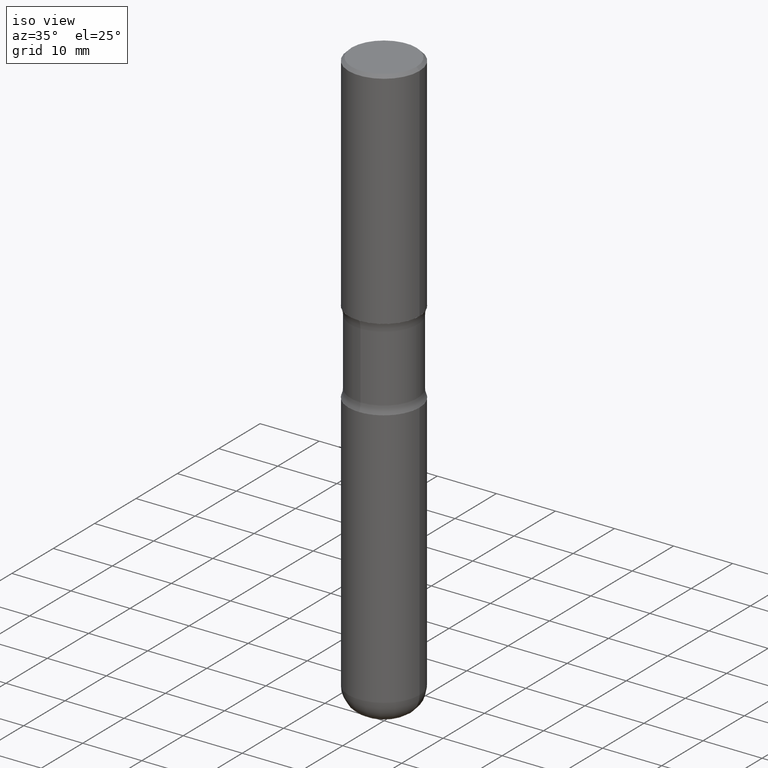
[diagram: clean part render]
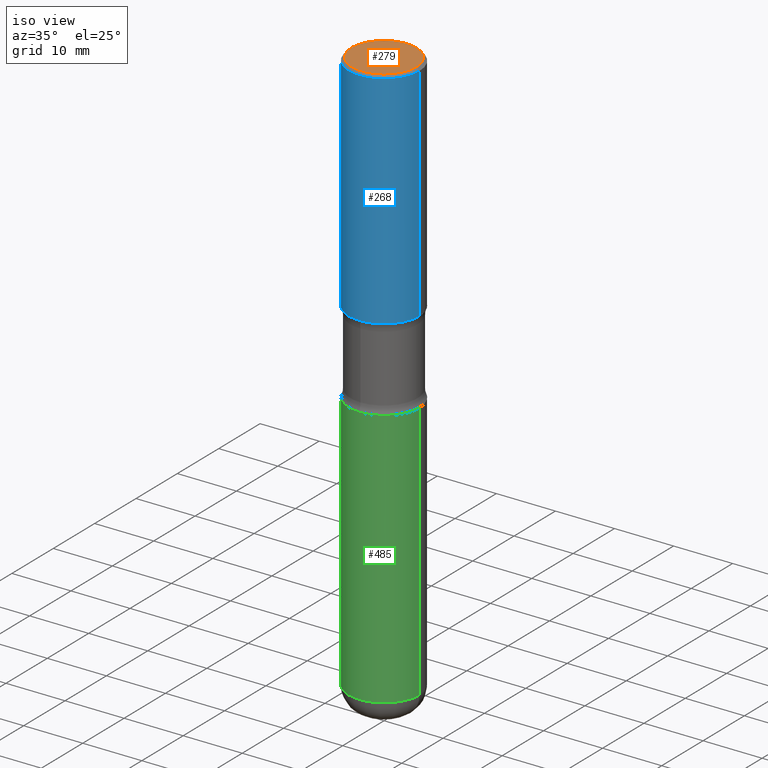
[diagram: same view with three faces highlighted in distinct colors, each labeled with its STEP entity id]
A machine part, iso view with three faces highlighted in distinct colors.
Their STEP definitions:

[orange] entity #279 — the highlighted planar face has unit normal (0, -0, -1).
#62 = CIRCLE ( 'NONE', #82, 0.2162000000000000033 ) ;
#82 = AXIS2_PLACEMENT_3D ( 'NONE', #515, #201, #237 ) ;
#110 = DIRECTION ( 'NONE',  ( 1.000000000000000000, -6.982962677686266711E-15, 4.876655451117825523E-29 ) ) ;
#111 = ORIENTED_EDGE ( 'NONE', *, *, #426, .T. ) ;
#188 = CARTESIAN_POINT ( 'NONE',  ( 5.219257071676098903E-46, -7.451715851902235727E-32, -2.134256245050205639E-17 ) ) ;
#201 = DIRECTION ( 'NONE',  ( -2.445468806185136597E-29, 3.491481338843145583E-15, 1.000000000000000000 ) ) ;
#228 = AXIS2_PLACEMENT_3D ( 'NONE', #188, #551, #110 ) ;
#237 = DIRECTION ( 'NONE',  ( 1.000000000000000000, -6.982962677686266711E-15, 4.876655451117825523E-29 ) ) ;
#239 = AXIS2_PLACEMENT_3D ( 'NONE', #370, #269, #489 ) ;
#269 = DIRECTION ( 'NONE',  ( 2.438088387897960049E-29, -3.491481338843145188E-15, -1.000000000000000000 ) ) ;
#279 = ADVANCED_FACE ( 'NONE', ( #323 ), #414, .F. ) ;
#288 = ORIENTED_EDGE ( 'NONE', *, *, #328, .T. ) ;
#303 = VERTEX_POINT ( 'NONE', #447 ) ;
#304 = CIRCLE ( 'NONE', #228, 0.2162000000000000033 ) ;
#323 = FACE_OUTER_BOUND ( 'NONE', #413, .T. ) ;
#328 = EDGE_CURVE ( 'NONE', #456, #303, #304, .T. ) ;
#370 = CARTESIAN_POINT ( 'NONE',  ( 1.509716530915770718E-15, 0.2162000000000000033, -7.655295466831390880E-16 ) ) ;
#413 = EDGE_LOOP ( 'NONE', ( #111, #288 ) ) ;
#414 = PLANE ( 'NONE',  #239 ) ;
#419 = CARTESIAN_POINT ( 'NONE',  ( 0.2162000000000000033, -1.586759460484351988E-15, -2.134256245049122805E-17 ) ) ;
#426 = EDGE_CURVE ( 'NONE', #303, #456, #62, .T. ) ;
#447 = CARTESIAN_POINT ( 'NONE',  ( -0.2162000000000000033, 1.544631344304202170E-15, -2.134256245051273683E-17 ) ) ;
#456 = VERTEX_POINT ( 'NONE', #419 ) ;
#489 = DIRECTION ( 'NONE',  ( -1.000000000000000000, 6.982962677686265922E-15, -4.876176775795935793E-29 ) ) ;
#515 = CARTESIAN_POINT ( 'NONE',  ( 5.219257071676098903E-46, -7.451715851902235727E-32, -2.134256245050205639E-17 ) ) ;
#551 = DIRECTION ( 'NONE',  ( -2.445468806185136597E-29, 3.491481338843145583E-15, 1.000000000000000000 ) ) ;

[blue] entity #268 — the highlighted cylindrical surface (partial cylindrical patch) has radius 5.9995 mm, axis along (-0, 0, 1).
#21 = CARTESIAN_POINT ( 'NONE',  ( 4.890937612370289799E-31, -6.982962677686315028E-17, -0.02000000000000006981 ) ) ;
#48 = VECTOR ( 'NONE', #55, 39.37007874015748143 ) ;
#55 = DIRECTION ( 'NONE',  ( -2.445468806185136877E-29, 3.491481338843145188E-15, 1.000000000000000000 ) ) ;
#60 = CARTESIAN_POINT ( 'NONE',  ( 0.000000000000000000, 0.000000000000000000, 0.000000000000000000 ) ) ;
#67 = FACE_OUTER_BOUND ( 'NONE', #282, .T. ) ;
#70 = VERTEX_POINT ( 'NONE', #243 ) ;
#73 = DIRECTION ( 'NONE',  ( -2.445468806185136597E-29, 3.491481338843145583E-15, 1.000000000000000000 ) ) ;
#106 = DIRECTION ( 'NONE',  ( -2.445468806185136597E-29, 3.491481338843145583E-15, 1.000000000000000000 ) ) ;
#108 = CIRCLE ( 'NONE', #259, 0.2362000000000000210 ) ;
#115 = ORIENTED_EDGE ( 'NONE', *, *, #342, .T. ) ;
#120 = CARTESIAN_POINT ( 'NONE',  ( -0.2362000000000000210, 1.579546157692633424E-15, -0.02000000000000006981 ) ) ;
#136 = DIRECTION ( 'NONE',  ( -2.445468806185136597E-29, 3.491481338843145583E-15, 1.000000000000000000 ) ) ;
#144 = DIRECTION ( 'NONE',  ( 1.000000000000000000, -6.982962677686267499E-15, 0.000000000000000000 ) ) ;
#148 = CIRCLE ( 'NONE', #171, 0.2362000000000004374 ) ;
#169 = EDGE_CURVE ( 'NONE', #70, #467, #177, .T. ) ;
#171 = AXIS2_PLACEMENT_3D ( 'NONE', #459, #73, #144 ) ;
#175 = DIRECTION ( 'NONE',  ( 1.000000000000000000, -6.982962677686267499E-15, 0.000000000000000000 ) ) ;
#177 = LINE ( 'NONE', #432, #48 ) ;
#222 = EDGE_CURVE ( 'NONE', #467, #247, #108, .T. ) ;
#231 = DIRECTION ( 'NONE',  ( -2.445468806185136877E-29, 3.491481338843145188E-15, 1.000000000000000000 ) ) ;
#233 = ORIENTED_EDGE ( 'NONE', *, *, #347, .T. ) ;
#243 = CARTESIAN_POINT ( 'NONE',  ( -0.2362000000000004374, -9.684154870446855490E-16, -1.496100000000000430 ) ) ;
#247 = VERTEX_POINT ( 'NONE', #330 ) ;
#259 = AXIS2_PLACEMENT_3D ( 'NONE', #21, #136, #175 ) ;
#268 = ADVANCED_FACE ( 'NONE', ( #67 ), #366, .T. ) ;
#273 = LINE ( 'NONE', #453, #403 ) ;
#282 = EDGE_LOOP ( 'NONE', ( #425, #115, #233, #505 ) ) ;
#313 = AXIS2_PLACEMENT_3D ( 'NONE', #60, #106, #504 ) ;
#330 = CARTESIAN_POINT ( 'NONE',  ( 0.2362000000000000210, -1.690279253850499166E-15, -0.02000000000000006981 ) ) ;
#342 = EDGE_CURVE ( 'NONE', #70, #473, #148, .T. ) ;
#347 = EDGE_CURVE ( 'NONE', #473, #247, #273, .T. ) ;
#366 = CYLINDRICAL_SURFACE ( 'NONE', #313, 0.2362000000000002431 ) ;
#403 = VECTOR ( 'NONE', #231, 39.37007874015748143 ) ;
#425 = ORIENTED_EDGE ( 'NONE', *, *, #169, .F. ) ;
#432 = CARTESIAN_POINT ( 'NONE',  ( -0.2362000000000002431, 1.678301941865358366E-15, -1.161852468318209878E-29 ) ) ;
#453 = CARTESIAN_POINT ( 'NONE',  ( 0.2362000000000002431, -1.649375784469497906E-15, 1.151752954443001209E-29 ) ) ;
#459 = CARTESIAN_POINT ( 'NONE',  ( 3.658665880933583510E-29, -5.223605231043231238E-15, -1.496100000000000430 ) ) ;
#467 = VERTEX_POINT ( 'NONE', #120 ) ;
#472 = CARTESIAN_POINT ( 'NONE',  ( 0.2362000000000004374, -6.872981015512730918E-15, -1.496100000000000430 ) ) ;
#473 = VERTEX_POINT ( 'NONE', #472 ) ;
#504 = DIRECTION ( 'NONE',  ( 1.000000000000000000, -6.982962677686266711E-15, 4.876176775795935793E-29 ) ) ;
#505 = ORIENTED_EDGE ( 'NONE', *, *, #222, .F. ) ;

[green] entity #485 — the highlighted cylindrical surface (partial cylindrical patch) has radius 5.9995 mm, axis along (-0, 0, 1).
#25 = LINE ( 'NONE', #182, #547 ) ;
#34 = EDGE_CURVE ( 'NONE', #408, #105, #133, .T. ) ;
#61 = ORIENTED_EDGE ( 'NONE', *, *, #393, .T. ) ;
#69 = DIRECTION ( 'NONE',  ( -2.445468806185136597E-29, 3.491481338843145583E-15, 1.000000000000000000 ) ) ;
#74 = ORIENTED_EDGE ( 'NONE', *, *, #34, .F. ) ;
#79 = CARTESIAN_POINT ( 'NONE',  ( -0.2362000000000002153, -8.492732346318610806E-15, -2.047200000000000575 ) ) ;
#83 = LINE ( 'NONE', #461, #449 ) ;
#87 = ORIENTED_EDGE ( 'NONE', *, *, #550, .T. ) ;
#105 = VERTEX_POINT ( 'NONE', #261 ) ;
#122 = CARTESIAN_POINT ( 'NONE',  ( 0.000000000000000000, 0.000000000000000000, 0.000000000000000000 ) ) ;
#133 = CIRCLE ( 'NONE', #518, 0.2362000000000002153 ) ;
#182 = CARTESIAN_POINT ( 'NONE',  ( -0.2362000000000002709, 1.678301941865358564E-15, -1.161852468318210018E-29 ) ) ;
#185 = EDGE_LOOP ( 'NONE', ( #281, #61, #87, #74 ) ) ;
#186 = AXIS2_PLACEMENT_3D ( 'NONE', #455, #69, #321 ) ;
#190 = DIRECTION ( 'NONE',  ( 1.000000000000000000, -6.982962677686266711E-15, 4.876176775795936353E-29 ) ) ;
#199 = DIRECTION ( 'NONE',  ( 1.000000000000000000, -6.982962677686266711E-15, 0.000000000000000000 ) ) ;
#209 = AXIS2_PLACEMENT_3D ( 'NONE', #122, #375, #190 ) ;
#234 = DIRECTION ( 'NONE',  ( -2.445468806185136877E-29, 3.491481338843145188E-15, 1.000000000000000000 ) ) ;
#261 = CARTESIAN_POINT ( 'NONE',  ( 0.2362000000000002153, -8.797136381349187883E-15, -2.047200000000000575 ) ) ;
#281 = ORIENTED_EDGE ( 'NONE', *, *, #308, .F. ) ;
#308 = EDGE_CURVE ( 'NONE', #420, #408, #25, .T. ) ;
#321 = DIRECTION ( 'NONE',  ( 1.000000000000000000, -6.982962677686263555E-15, 0.000000000000000000 ) ) ;
#340 = CARTESIAN_POINT ( 'NONE',  ( 0.2362000000000002709, -1.484368376395774588E-14, -3.779000000000000359 ) ) ;
#343 = FACE_OUTER_BOUND ( 'NONE', #185, .T. ) ;
#363 = DIRECTION ( 'NONE',  ( -2.445468806185136877E-29, 3.491481338843145188E-15, 1.000000000000000000 ) ) ;
#375 = DIRECTION ( 'NONE',  ( -2.445468806185136597E-29, 3.491481338843145583E-15, 1.000000000000000000 ) ) ;
#377 = CARTESIAN_POINT ( 'NONE',  ( 5.006363740022213922E-29, -7.147760596879691357E-15, -2.047200000000000575 ) ) ;
#393 = EDGE_CURVE ( 'NONE', #420, #508, #476, .T. ) ;
#408 = VERTEX_POINT ( 'NONE', #79 ) ;
#420 = VERTEX_POINT ( 'NONE', #427 ) ;
#427 = CARTESIAN_POINT ( 'NONE',  ( -0.2362000000000002709, -1.151600603762289138E-14, -3.779000000000000359 ) ) ;
#449 = VECTOR ( 'NONE', #234, 39.37007874015748143 ) ;
#455 = CARTESIAN_POINT ( 'NONE',  ( 9.241426618573632392E-29, -1.319430797948824935E-14, -3.779000000000000359 ) ) ;
#461 = CARTESIAN_POINT ( 'NONE',  ( 0.2362000000000002709, -1.649375784469498103E-15, 1.151752954443001489E-29 ) ) ;
#476 = CIRCLE ( 'NONE', #186, 0.2362000000000003264 ) ;
#485 = ADVANCED_FACE ( 'NONE', ( #343 ), #507, .T. ) ;
#507 = CYLINDRICAL_SURFACE ( 'NONE', #209, 0.2362000000000002709 ) ;
#508 = VERTEX_POINT ( 'NONE', #340 ) ;
#518 = AXIS2_PLACEMENT_3D ( 'NONE', #377, #558, #199 ) ;
#547 = VECTOR ( 'NONE', #363, 39.37007874015748143 ) ;
#550 = EDGE_CURVE ( 'NONE', #508, #105, #83, .T. ) ;
#558 = DIRECTION ( 'NONE',  ( -2.445468806185136597E-29, 3.491481338843145583E-15, 1.000000000000000000 ) ) ;